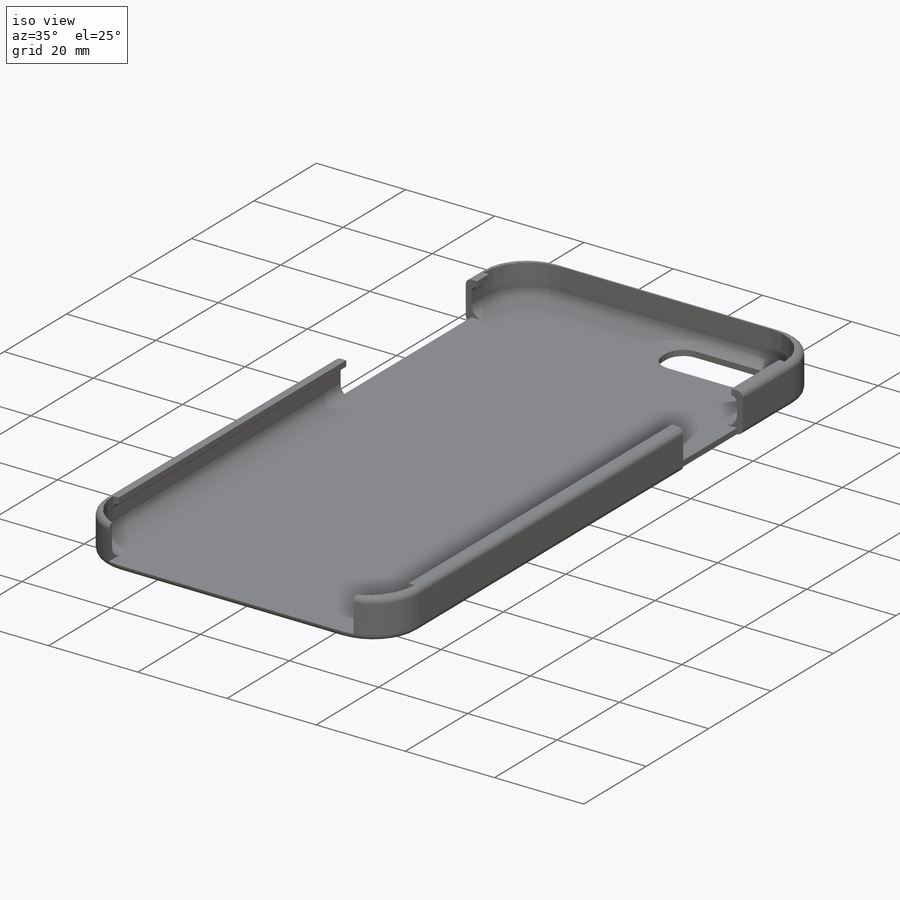
[diagram: iso view]
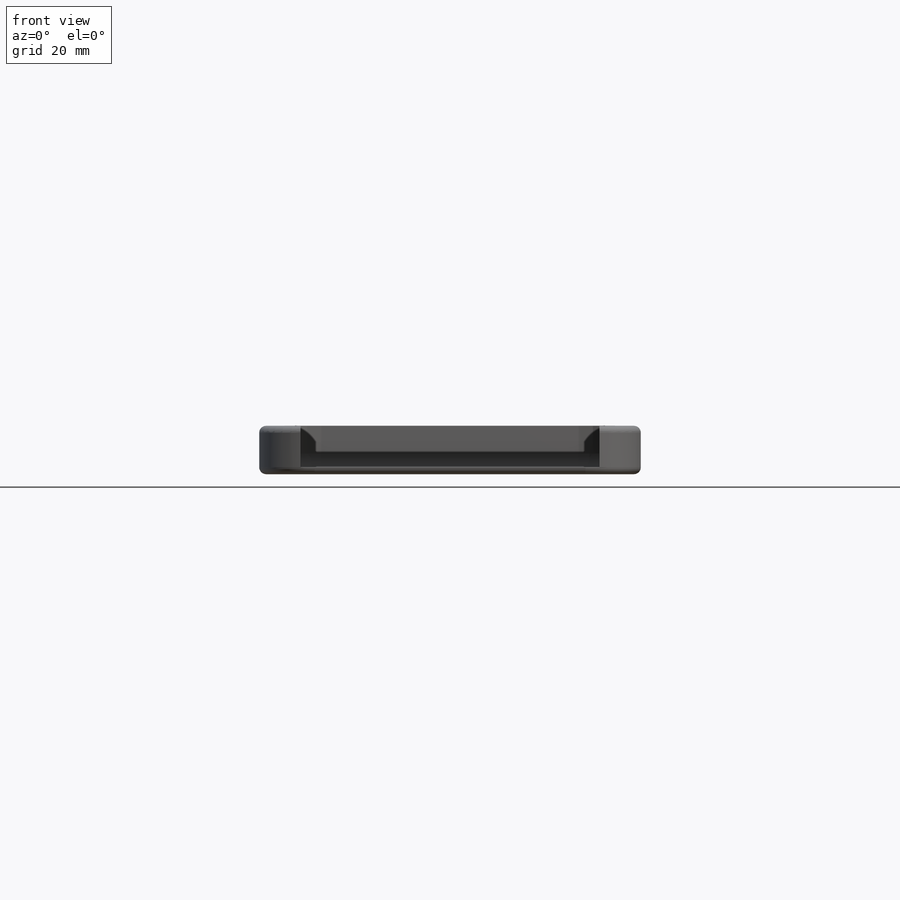
[diagram: front view]
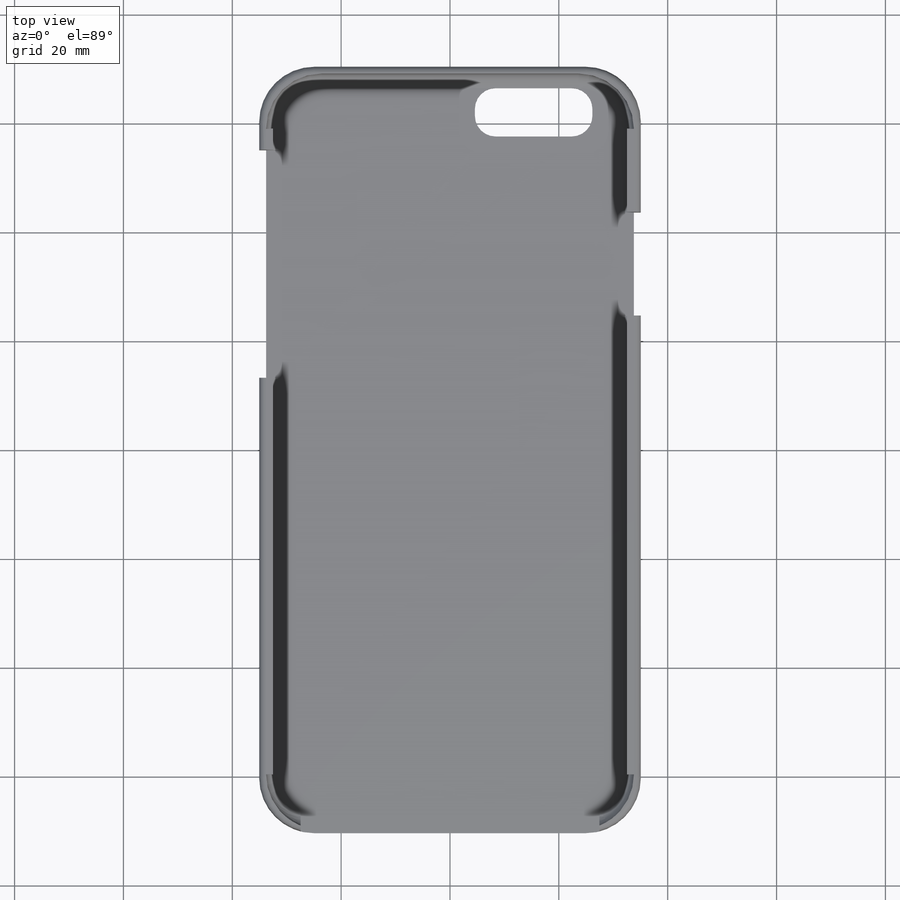
[diagram: top view]
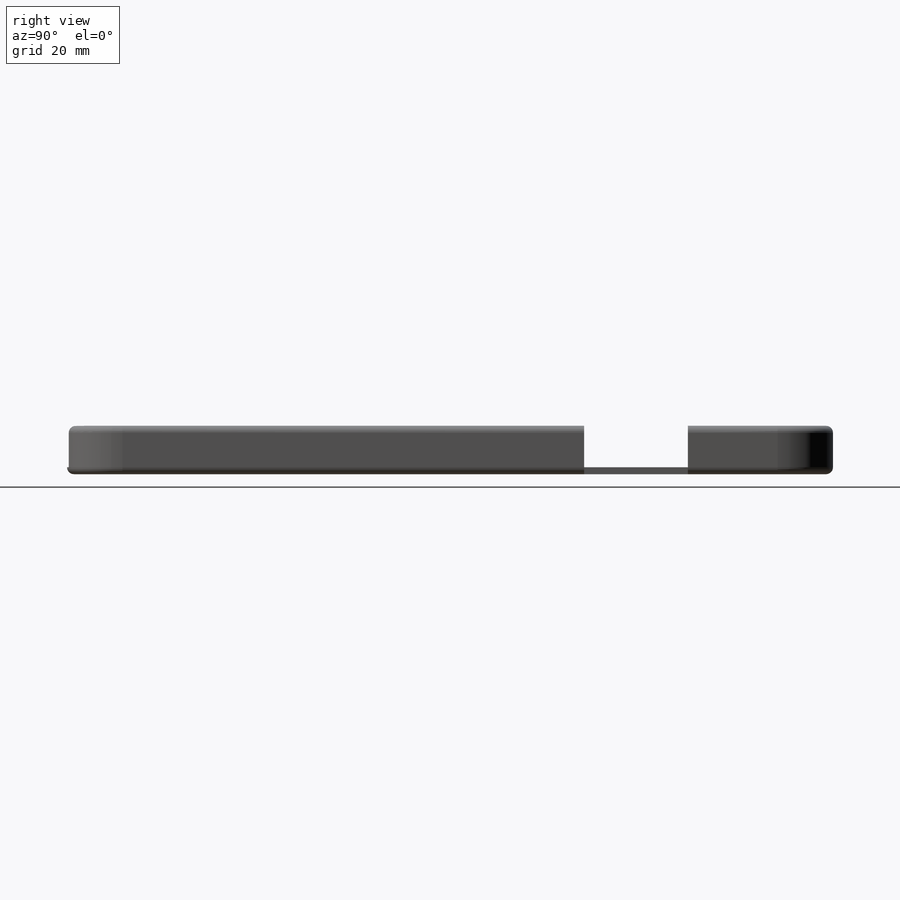
[diagram: right view]
SOLIDWORKS PART (.sldprt)
format: sldprt  version: not decoded by parser v0  size: 534,016 bytes
history: native  units: mm
features: sketch x12, extrude x7, fillet x7, cut_extrude x5, material x1 (+12 scaffold rows collapsed)
feature tree (44):
  scaffold x12  (default folders/planes/origin — collapsed)
  material  "Material <not specified>"
  sketch  "Sketch1"  dims[D1=70.104mm D2=140.716mm]
  extrude  "Boss-Extrude1"  Depth=1.27mm
  sketch  "Sketch2"  dims[c1.D1=1.27mm c1.D2=1.27mm c1.D3=1.27mm c1.D4=1.27mm c1.D5=1.27mm c1.D6=138.176mm c2.D1=1.27mm c2.D2=1.27mm c2.D3=1.27mm c2.D4=139.446mm c2.D6=140.716mm c3.D4=139.446mm c3.D3=1.27mm]
  extrude  "Boss-Extrude2"  Depth=7.62mm
  sketch  "Sketch3"  dims[D1=15.24mm D2=57.15mm D3=1.27mm]
  cut_extrude  "Cut-Extrude1"  Depth=1.27mm
  sketch  "Sketch5"  dims[D1=26.67mm D2=45.72mm D3=1.27mm]
  cut_extrude  "Cut-Extrude2"  Depth=1.27mm
  sketch  "Sketch6"  dims[c1.D1=7.62mm c1.D2=7.62mm c1.D3=1.27mm c2.D1=7.62mm c2.D2=7.62mm c2.D3=1.27mm]
  cut_extrude  "Cut-Extrude3"  Depth=1.27mm
  sketch  "Sketch7"  dims[D1=8.89mm D2=30.48mm D3=3.81mm D4=12.7mm]
  cut_extrude  "Cut-Extrude4"  Depth=1.27mm
  fillet  "Fillet1"  Radius=10.16mm
  fillet  "Fillet2"  Radius=10.16mm
  sketch  "Sketch8"  dims[D1=1.27mm]
  extrude  "Boss-Extrude3"  Depth=1.27mm
  sketch  "Sketch13"  dims[D1=1.27mm]
  extrude  "Boss-Extrude6"  Depth=1.27mm
  sketch  "Sketch14"  dims[D1=1.27mm]
  extrude  "Boss-Extrude7"  Depth=1.27mm
  sketch  "Sketch19"  dims[D1=1.27mm]
  extrude  "Boss-Extrude8"  Depth=1.27mm
  sketch  "Sketch20"  dims[D1=1.27mm]
  extrude  "Boss-Extrude9"  Depth=1.27mm
  fillet  "Fillet9"  Radius=3.81mm
  fillet  "Fillet12"  Radius=1.27mm
  fillet  "Fillet15"  Radius=1.27mm
  fillet  "Fillet16"  Radius=2.54mm
  sketch  "Sketch28"  dims[D1=1.27mm D2=1.27mm]
  cut_extrude  "Cut-Extrude10"  Depth=1.27mm
  fillet  "Fillet18"  Radius=1.27mm
decode coverage: 31 of 31 modeling features carry decoded parameters
note: suppression state not decoded; provenance and decode notes live in map.json
